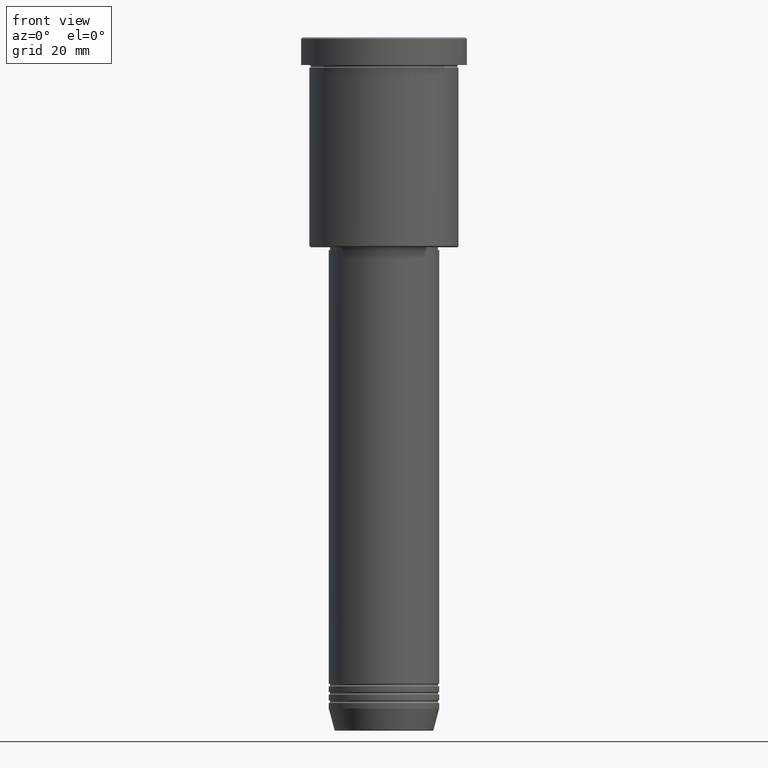
[diagram: clean part render]
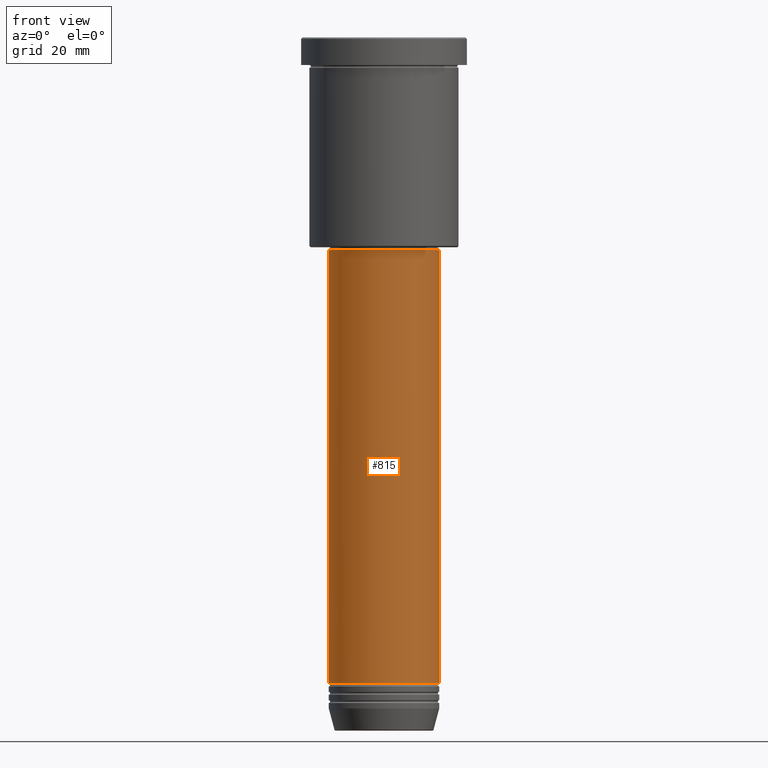
[diagram: same view with one face highlighted and labeled with its STEP entity id]
A machine part, front view. The second image highlights one B-rep face of the part: STEP entity #815.
In plain terms, the highlighted cylindrical surface (partial cylindrical patch) has radius 20 mm, axis along (-0, -0, 1).
Its self-contained STEP definition (entity closure, byte-faithful):
#6 = EDGE_CURVE ( 'NONE', #809, #661, #680, .T. ) ;
#54 = CARTESIAN_POINT ( 'NONE',  ( 0.000000000000000000, 0.000000000000000000, 0.000000000000000000 ) ) ;
#57 = DIRECTION ( 'NONE',  ( -0.000000000000000000, -0.000000000000000000, 1.000000000000000000 ) ) ;
#72 = ORIENTED_EDGE ( 'NONE', *, *, #6, .F. ) ;
#143 = AXIS2_PLACEMENT_3D ( 'NONE', #54, #411, #1149 ) ;
#193 = DIRECTION ( 'NONE',  ( -0.000000000000000000, -0.000000000000000000, 1.000000000000000000 ) ) ;
#225 = CYLINDRICAL_SURFACE ( 'NONE', #143, 20.00000000000000000 ) ;
#244 = CARTESIAN_POINT ( 'NONE',  ( 20.00000000000000000, 0.000000000000000000, -234.0000000000000000 ) ) ;
#265 = EDGE_CURVE ( 'NONE', #1089, #1118, #349, .T. ) ;
#326 = AXIS2_PLACEMENT_3D ( 'NONE', #1014, #193, #789 ) ;
#337 = LINE ( 'NONE', #878, #1061 ) ;
#349 = CIRCLE ( 'NONE', #519, 20.00000000000000000 ) ;
#362 = DIRECTION ( 'NONE',  ( -0.000000000000000000, -0.000000000000000000, 1.000000000000000000 ) ) ;
#380 = EDGE_CURVE ( 'NONE', #1118, #661, #988, .T. ) ;
#411 = DIRECTION ( 'NONE',  ( -0.000000000000000000, -0.000000000000000000, 1.000000000000000000 ) ) ;
#476 = DIRECTION ( 'NONE',  ( -0.000000000000000000, -0.000000000000000000, 1.000000000000000000 ) ) ;
#519 = AXIS2_PLACEMENT_3D ( 'NONE', #939, #476, #1042 ) ;
#530 = ORIENTED_EDGE ( 'NONE', *, *, #265, .T. ) ;
#533 = CARTESIAN_POINT ( 'NONE',  ( 20.00000000000000000, 0.000000000000000000, 0.000000000000000000 ) ) ;
#592 = CARTESIAN_POINT ( 'NONE',  ( -20.00000000000000000, 2.449293598294706513E-15, -77.00000000000001421 ) ) ;
#661 = VERTEX_POINT ( 'NONE', #1074 ) ;
#680 = CIRCLE ( 'NONE', #326, 20.00000000000000000 ) ;
#685 = FACE_OUTER_BOUND ( 'NONE', #721, .T. ) ;
#711 = ORIENTED_EDGE ( 'NONE', *, *, #380, .T. ) ;
#716 = VECTOR ( 'NONE', #362, 1000.000000000000000 ) ;
#721 = EDGE_LOOP ( 'NONE', ( #848, #530, #711, #72 ) ) ;
#789 = DIRECTION ( 'NONE',  ( 1.000000000000000000, 0.000000000000000000, 0.000000000000000000 ) ) ;
#809 = VERTEX_POINT ( 'NONE', #592 ) ;
#815 = ADVANCED_FACE ( 'NONE', ( #685 ), #225, .T. ) ;
#848 = ORIENTED_EDGE ( 'NONE', *, *, #1091, .F. ) ;
#878 = CARTESIAN_POINT ( 'NONE',  ( -20.00000000000000000, 2.449293598294706513E-15, 0.000000000000000000 ) ) ;
#939 = CARTESIAN_POINT ( 'NONE',  ( 0.000000000000000000, 0.000000000000000000, -234.0000000000000000 ) ) ;
#988 = LINE ( 'NONE', #533, #716 ) ;
#1014 = CARTESIAN_POINT ( 'NONE',  ( 0.000000000000000000, 0.000000000000000000, -77.00000000000001421 ) ) ;
#1042 = DIRECTION ( 'NONE',  ( 1.000000000000000000, 0.000000000000000000, 0.000000000000000000 ) ) ;
#1061 = VECTOR ( 'NONE', #57, 1000.000000000000000 ) ;
#1074 = CARTESIAN_POINT ( 'NONE',  ( 20.00000000000000000, 0.000000000000000000, -77.00000000000001421 ) ) ;
#1089 = VERTEX_POINT ( 'NONE', #1160 ) ;
#1091 = EDGE_CURVE ( 'NONE', #1089, #809, #337, .T. ) ;
#1118 = VERTEX_POINT ( 'NONE', #244 ) ;
#1149 = DIRECTION ( 'NONE',  ( 1.000000000000000000, 0.000000000000000000, 0.000000000000000000 ) ) ;
#1160 = CARTESIAN_POINT ( 'NONE',  ( -20.00000000000000000, 2.449293598294706513E-15, -234.0000000000000000 ) ) ;